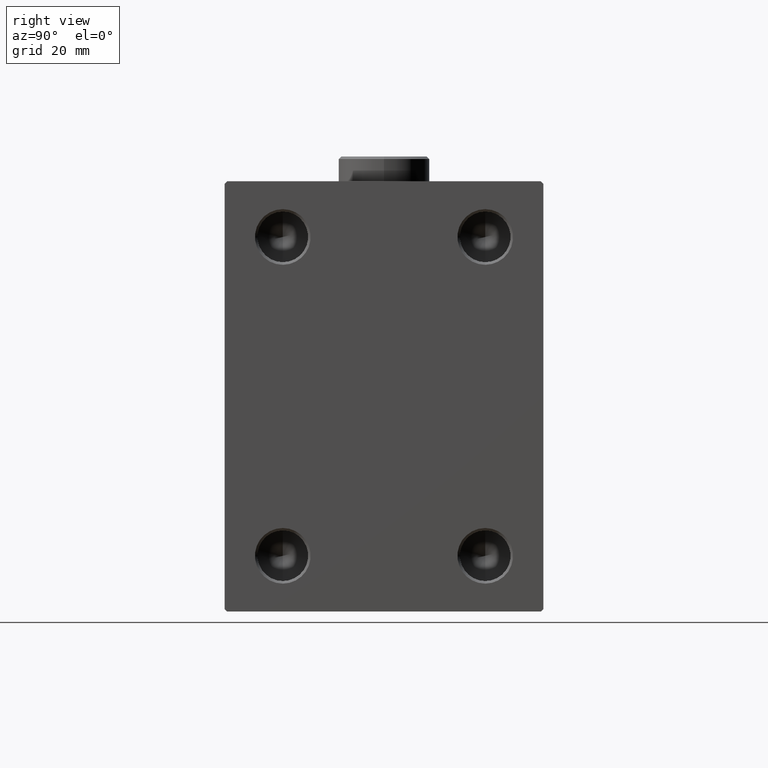
[diagram: clean part render]
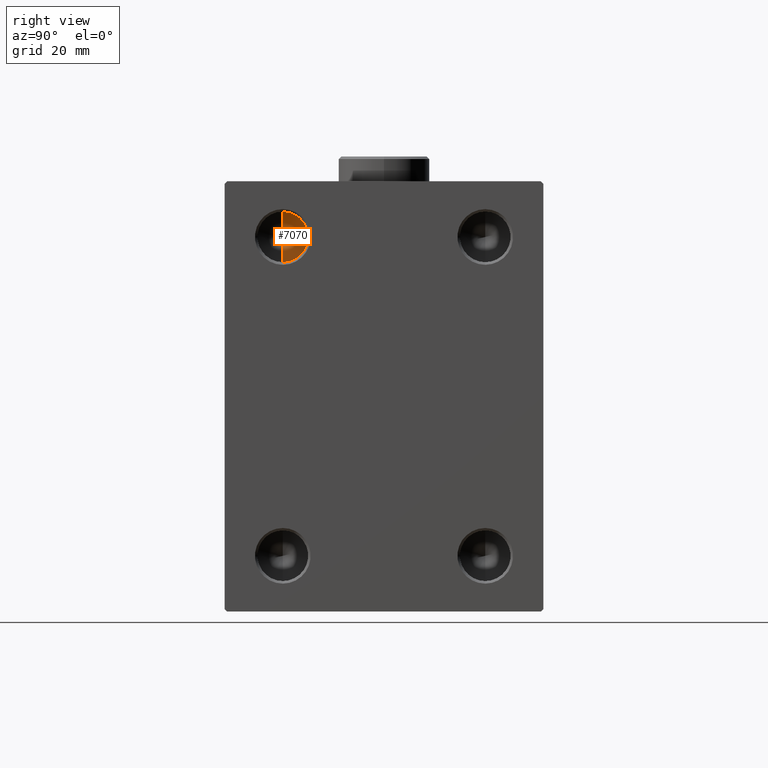
[diagram: same view with one face highlighted and labeled with its STEP entity id]
A machine part, right view. The second image highlights one B-rep face of the part: STEP entity #7070.
In plain terms, the highlighted conical surface has half-angle 59 deg.
Its self-contained STEP definition (entity closure, byte-faithful):
#1419 = CARTESIAN_POINT ( 'NONE',  ( 63.00000000000000000, -20.00000000000000355, 31.50000000000000000 ) ) ;
#4098 = EDGE_CURVE ( 'NONE', #13861, #44814, #14345, .T. ) ;
#4866 = CARTESIAN_POINT ( 'NONE',  ( 63.00000000000000000, -20.00000000000000355, 31.50000000000000000 ) ) ;
#5771 = AXIS2_PLACEMENT_3D ( 'NONE', #4866, #25749, #25308 ) ;
#7070 = ADVANCED_FACE ( 'NONE', ( #22513 ), #19676, .F. ) ;
#7590 = ORIENTED_EDGE ( 'NONE', *, *, #39035, .T. ) ;
#8141 = CARTESIAN_POINT ( 'NONE',  ( 63.00000000000000000, -20.00000000000000355, 36.50000000000000000 ) ) ;
#8891 = VECTOR ( 'NONE', #12863, 1000.000000000000000 ) ;
#12405 = DIRECTION ( 'NONE',  ( 0.000000000000000000, 0.000000000000000000, 1.000000000000000000 ) ) ;
#12863 = DIRECTION ( 'NONE',  ( 0.5150380749100552658, -1.049727191138617833E-16, -0.8571673007021116675 ) ) ;
#13861 = VERTEX_POINT ( 'NONE', #25676 ) ;
#14345 = LINE ( 'NONE', #8141, #17430 ) ;
#14461 = CARTESIAN_POINT ( 'NONE',  ( 63.00000000000000000, -20.00000000000000355, 36.50000000000000000 ) ) ;
#15876 = ORIENTED_EDGE ( 'NONE', *, *, #4098, .F. ) ;
#17430 = VECTOR ( 'NONE', #29044, 1000.000000000000000 ) ;
#18408 = AXIS2_PLACEMENT_3D ( 'NONE', #1419, #43851, #12405 ) ;
#19676 = CONICAL_SURFACE ( 'NONE', #5771, 4.999999999999997335, 1.029744258676653201 ) ;
#19741 = LINE ( 'NONE', #27333, #8891 ) ;
#22513 = FACE_OUTER_BOUND ( 'NONE', #27119, .T. ) ;
#25308 = DIRECTION ( 'NONE',  ( 0.000000000000000000, 0.000000000000000000, 1.000000000000000000 ) ) ;
#25676 = CARTESIAN_POINT ( 'NONE',  ( 59.99569690486219997, -20.00000000000001066, 31.50000000000000000 ) ) ;
#25749 = DIRECTION ( 'NONE',  ( 1.000000000000000000, -0.000000000000000000, -0.000000000000000000 ) ) ;
#27119 = EDGE_LOOP ( 'NONE', ( #15876, #7590, #44945 ) ) ;
#27333 = CARTESIAN_POINT ( 'NONE',  ( 63.00000000000000000, -20.00000000000000355, 26.50000000000000355 ) ) ;
#29044 = DIRECTION ( 'NONE',  ( 0.5150380749100552658, 0.000000000000000000, 0.8571673007021116675 ) ) ;
#29565 = VERTEX_POINT ( 'NONE', #43979 ) ;
#38148 = EDGE_CURVE ( 'NONE', #44814, #29565, #44052, .T. ) ;
#39035 = EDGE_CURVE ( 'NONE', #13861, #29565, #19741, .T. ) ;
#43851 = DIRECTION ( 'NONE',  ( -1.000000000000000000, 0.000000000000000000, 0.000000000000000000 ) ) ;
#43979 = CARTESIAN_POINT ( 'NONE',  ( 63.00000000000000000, -20.00000000000000355, 26.50000000000000355 ) ) ;
#44052 = CIRCLE ( 'NONE', #18408, 4.999999999999997335 ) ;
#44814 = VERTEX_POINT ( 'NONE', #14461 ) ;
#44945 = ORIENTED_EDGE ( 'NONE', *, *, #38148, .F. ) ;